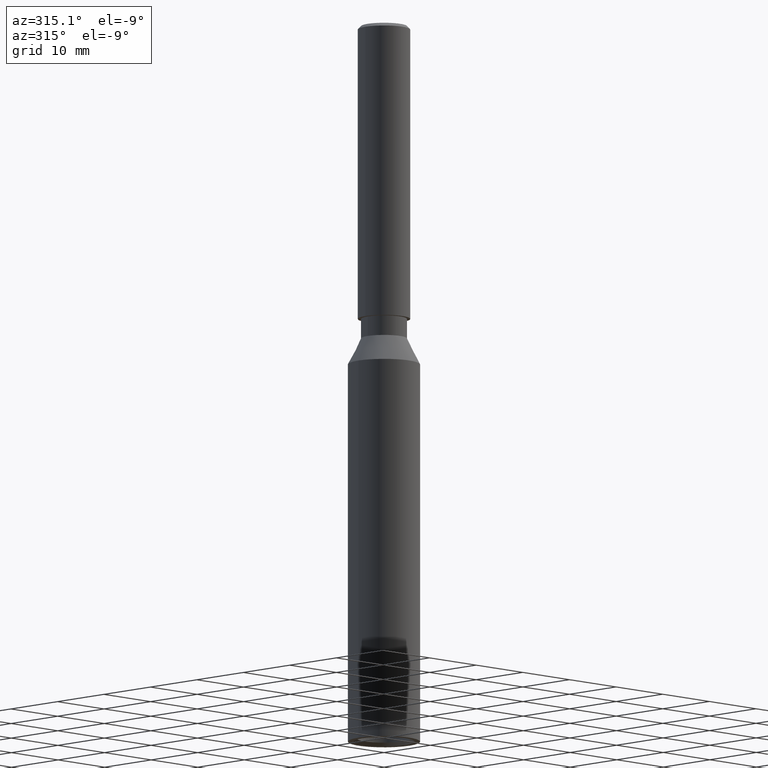
[diagram: clean part render]
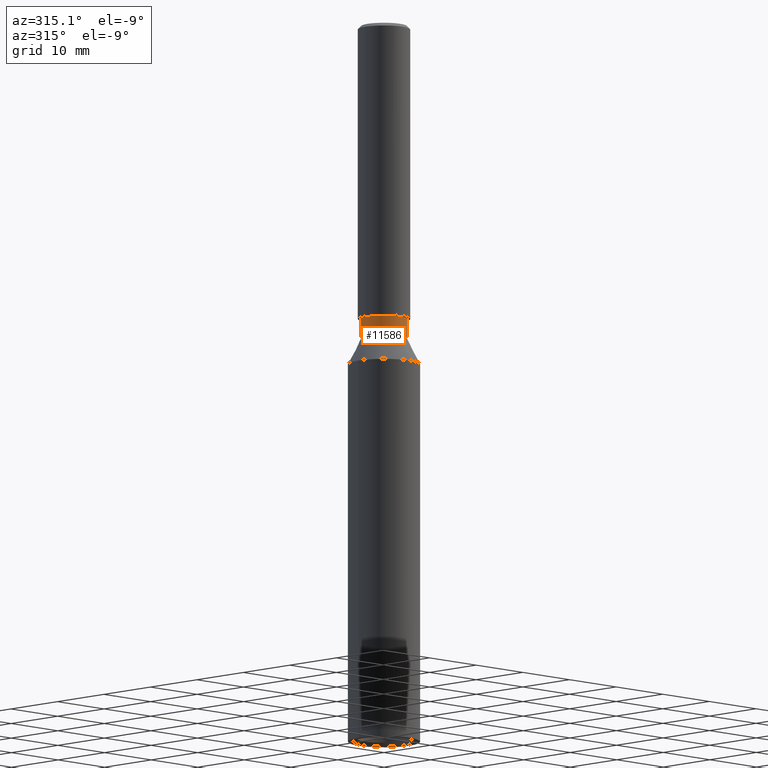
[diagram: same view with one face highlighted and labeled with its STEP entity id]
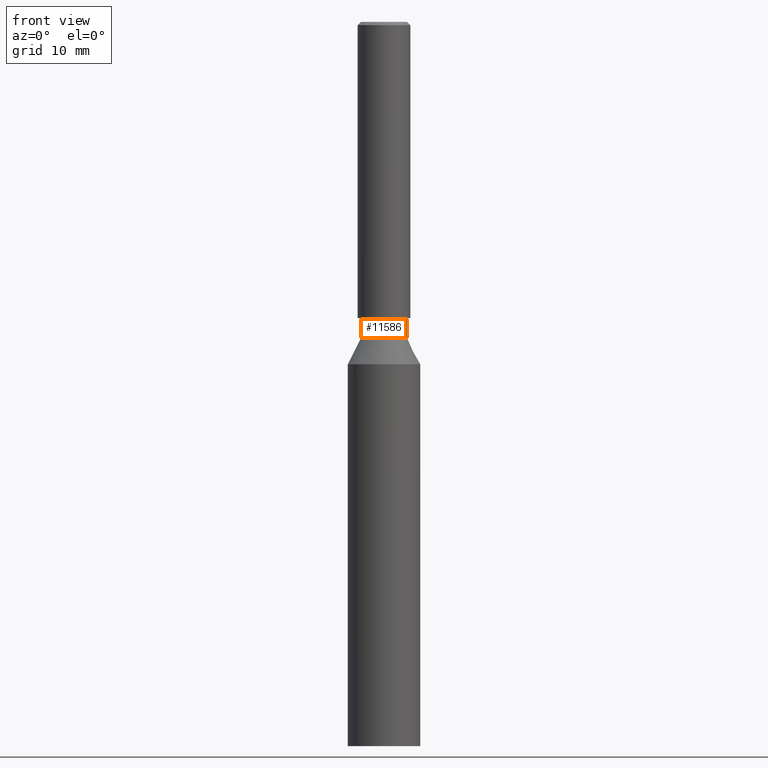
[diagram: same view with one face highlighted and labeled with its STEP entity id]
A machine part, auxiliary view. The second image highlights one B-rep face of the part: STEP entity #11586.
A second angle (front view) of the same face is appended — the face is thin or edge-on in the first view.
In plain terms, the highlighted cylindrical surface (bore or boss wall) has radius 3.5 mm, axis along (-0, -0, -1).
Its self-contained STEP definition (entity closure, byte-faithful):
#202 = EDGE_CURVE ( 'NONE', #4956, #4956, #13217, .T. ) ;
#544 = CARTESIAN_POINT ( 'NONE',  ( 0.000000000000000000, 0.000000000000000000, 0.000000000000000000 ) ) ;
#847 = CARTESIAN_POINT ( 'NONE',  ( -3.500000000000008438, 0.000000000000000000, 65.00000000000000000 ) ) ;
#1060 = DIRECTION ( 'NONE',  ( -0.000000000000000000, -0.000000000000000000, -1.000000000000000000 ) ) ;
#1378 = EDGE_CURVE ( 'NONE', #13491, #13491, #8848, .T. ) ;
#1788 = CARTESIAN_POINT ( 'NONE',  ( 0.000000000000000000, 0.000000000000000000, 65.00000000000000000 ) ) ;
#2107 = ORIENTED_EDGE ( 'NONE', *, *, #202, .T. ) ;
#2707 = DIRECTION ( 'NONE',  ( -0.000000000000000000, -0.000000000000000000, -1.000000000000000000 ) ) ;
#2833 = DIRECTION ( 'NONE',  ( -1.000000000000000000, 0.000000000000000000, 0.000000000000000000 ) ) ;
#3988 = AXIS2_PLACEMENT_3D ( 'NONE', #11751, #1060, #5361 ) ;
#4404 = AXIS2_PLACEMENT_3D ( 'NONE', #1788, #6103, #2833 ) ;
#4956 = VERTEX_POINT ( 'NONE', #847 ) ;
#5272 = AXIS2_PLACEMENT_3D ( 'NONE', #544, #2707, #5887 ) ;
#5361 = DIRECTION ( 'NONE',  ( -1.000000000000000000, 0.000000000000000000, 0.000000000000000000 ) ) ;
#5887 = DIRECTION ( 'NONE',  ( -1.000000000000000000, 0.000000000000000000, 0.000000000000000000 ) ) ;
#6103 = DIRECTION ( 'NONE',  ( -0.000000000000000000, -0.000000000000000000, -1.000000000000000000 ) ) ;
#6856 = CYLINDRICAL_SURFACE ( 'NONE', #5272, 3.500000000000008438 ) ;
#7340 = FACE_OUTER_BOUND ( 'NONE', #7807, .T. ) ;
#7807 = EDGE_LOOP ( 'NONE', ( #2107 ) ) ;
#8848 = CIRCLE ( 'NONE', #3988, 3.500000000000007994 ) ;
#9826 = FACE_OUTER_BOUND ( 'NONE', #13588, .T. ) ;
#10481 = ORIENTED_EDGE ( 'NONE', *, *, #1378, .F. ) ;
#11586 = ADVANCED_FACE ( 'NONE', ( #7340, #9826 ), #6856, .T. ) ;
#11751 = CARTESIAN_POINT ( 'NONE',  ( 0.000000000000000000, 0.000000000000000000, 62.00000000000000000 ) ) ;
#12805 = CARTESIAN_POINT ( 'NONE',  ( -3.500000000000007994, 0.000000000000000000, 62.00000000000000000 ) ) ;
#13217 = CIRCLE ( 'NONE', #4404, 3.500000000000008438 ) ;
#13491 = VERTEX_POINT ( 'NONE', #12805 ) ;
#13588 = EDGE_LOOP ( 'NONE', ( #10481 ) ) ;